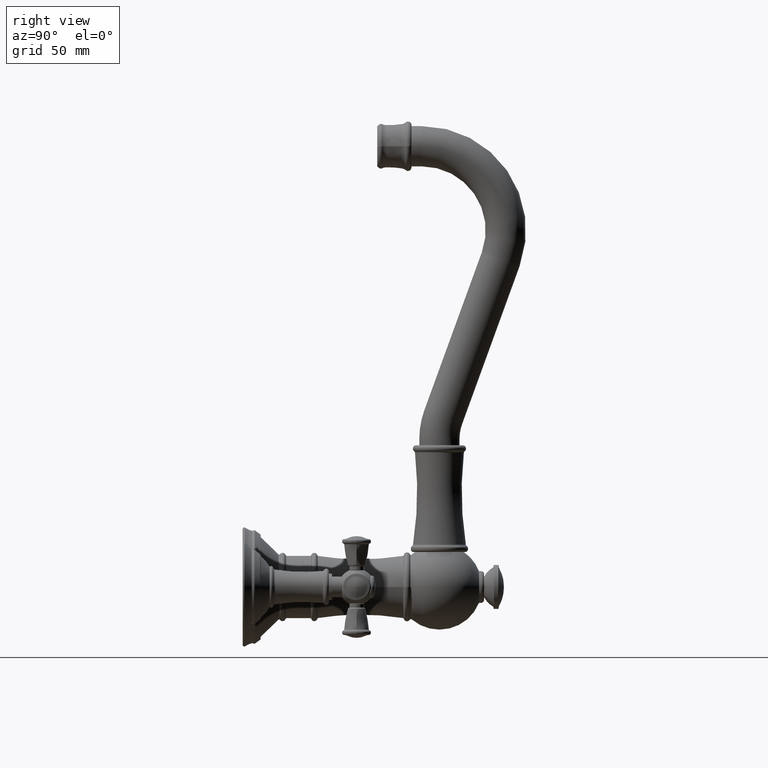
[diagram: clean part render]
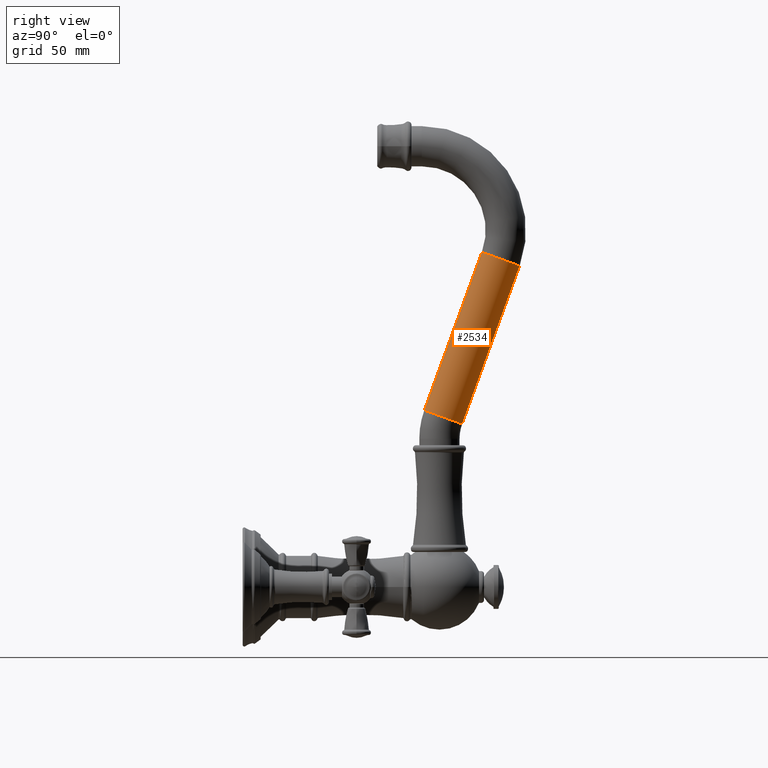
[diagram: same view with one face highlighted and labeled with its STEP entity id]
A machine part, right view. The second image highlights one B-rep face of the part: STEP entity #2534.
In plain terms, the highlighted cylindrical surface (edge-blend (fillet) strip) has radius 12.7 mm, axis along (0, 0.342, 0.9397).
Its self-contained STEP definition (entity closure, byte-faithful):
#829=CARTESIAN_POINT('',(0.E0,4.986135772938E0,4.223831826455E0));
#830=DIRECTION('',(0.E0,3.420201433257E-1,9.396926207859E-1));
#831=DIRECTION('',(0.E0,-9.396926207859E-1,3.420201433257E-1));
#832=AXIS2_PLACEMENT_3D('',#829,#830,#831);
#834=DIRECTION('',(0.E0,3.420201433257E-1,9.396926207859E-1));
#835=VECTOR('',#834,4.178628188770E0);
#836=CARTESIAN_POINT('',(0.E0,4.516289462545E0,4.394841898117E0));
#837=LINE('',#836,#835);
#843=DIRECTION('',(0.E0,3.420201433257E-1,9.396926207859E-1));
#844=VECTOR('',#843,4.178628188770E0);
#845=CARTESIAN_POINT('',(0.E0,5.455982083331E0,4.052821754792E0));
#846=LINE('',#845,#844);
#857=CARTESIAN_POINT('',(0.E0,6.415310784966E0,8.150457900449E0));
#858=DIRECTION('',(0.E0,3.420201433257E-1,9.396926207859E-1));
#859=DIRECTION('',(0.E0,-9.396926207859E-1,3.420201433257E-1));
#860=AXIS2_PLACEMENT_3D('',#857,#858,#859);
#1189=CARTESIAN_POINT('',(0.E0,4.516289462545E0,4.394841898117E0));
#1190=CARTESIAN_POINT('',(0.E0,5.455982083331E0,4.052821754792E0));
#1191=VERTEX_POINT('',#1189);
#1192=VERTEX_POINT('',#1190);
#1193=CARTESIAN_POINT('',(0.E0,5.945464474573E0,8.321467972112E0));
#1194=CARTESIAN_POINT('',(0.E0,6.885157095359E0,7.979447828787E0));
#1195=VERTEX_POINT('',#1193);
#1196=VERTEX_POINT('',#1194);
#2520=CARTESIAN_POINT('',(0.E0,4.986135772938E0,4.223831826455E0));
#2521=DIRECTION('',(0.E0,3.420201433257E-1,9.396926207859E-1));
#2522=DIRECTION('',(0.E0,-9.396926207859E-1,3.420201433257E-1));
#2523=AXIS2_PLACEMENT_3D('',#2520,#2521,#2522);
#2524=CYLINDRICAL_SURFACE('',#2523,5.E-1);
#2525=ORIENTED_EDGE('',*,*,#2514,.F.);
#2527=ORIENTED_EDGE('',*,*,#2526,.T.);
#2529=ORIENTED_EDGE('',*,*,#2528,.T.);
#2531=ORIENTED_EDGE('',*,*,#2530,.F.);
#2532=EDGE_LOOP('',(#2525,#2527,#2529,#2531));
#2533=FACE_OUTER_BOUND('',#2532,.F.);
#2534=ADVANCED_FACE('',(#2533),#2524,.T.);
#833=CIRCLE('',#832,5.E-1);
#861=CIRCLE('',#860,5.E-1);
#2514=EDGE_CURVE('',#1191,#1192,#833,.T.);
#2526=EDGE_CURVE('',#1191,#1195,#837,.T.);
#2528=EDGE_CURVE('',#1195,#1196,#861,.T.);
#2530=EDGE_CURVE('',#1192,#1196,#846,.T.);